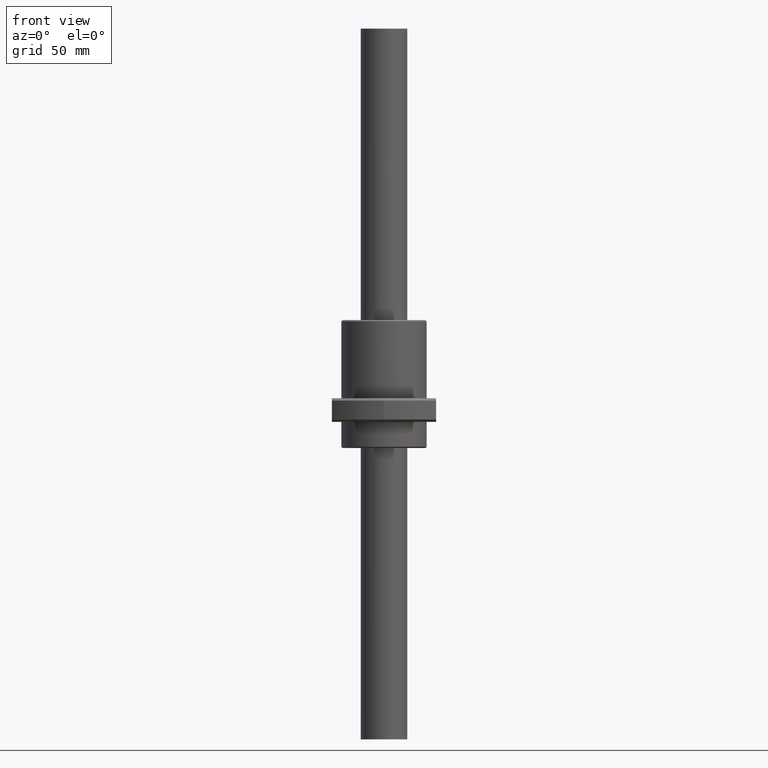
[diagram: clean part render]
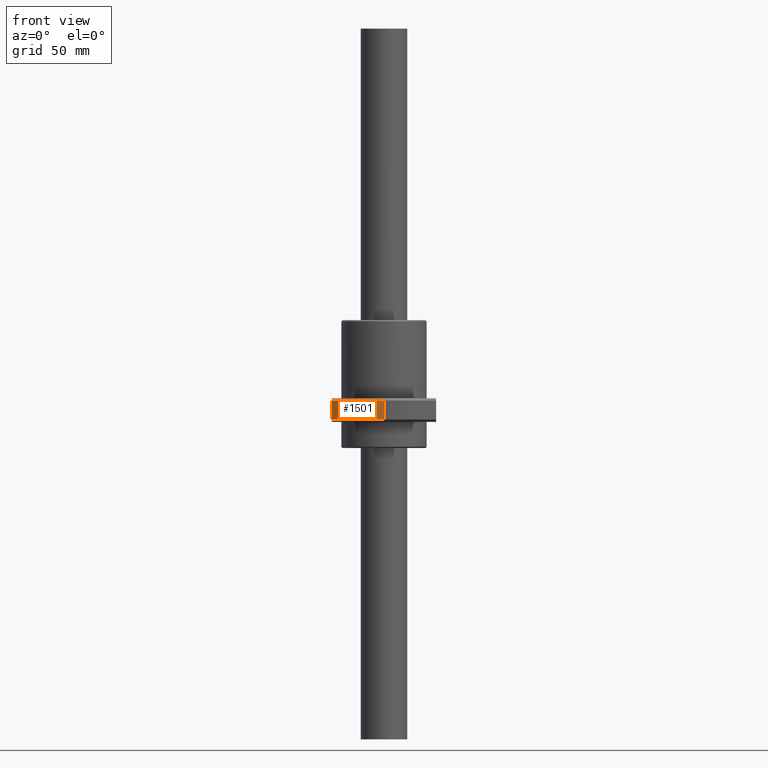
[diagram: same view with one face highlighted and labeled with its STEP entity id]
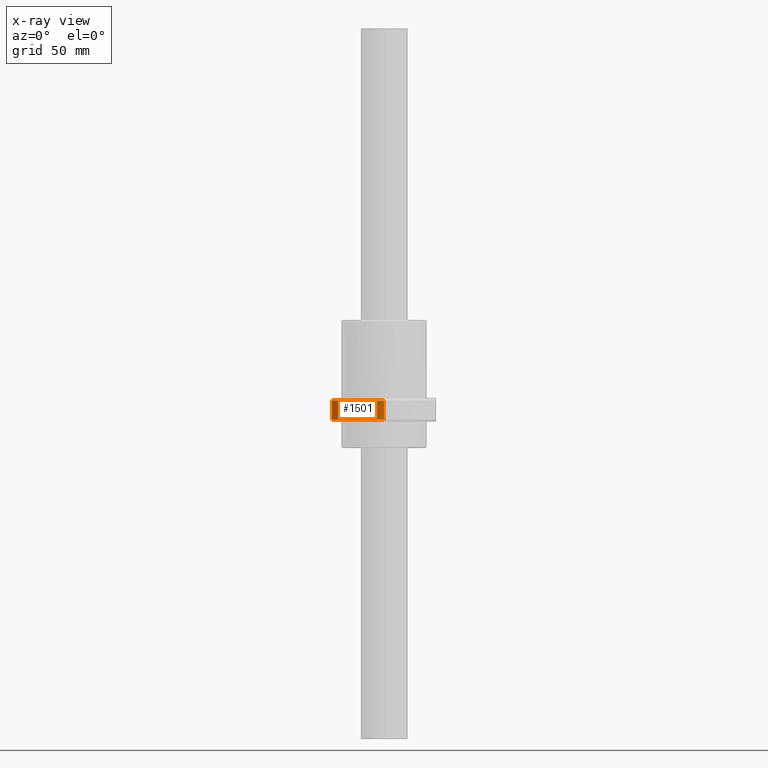
[diagram: x-ray of the same camera — body ghosted, the highlighted face saturated]
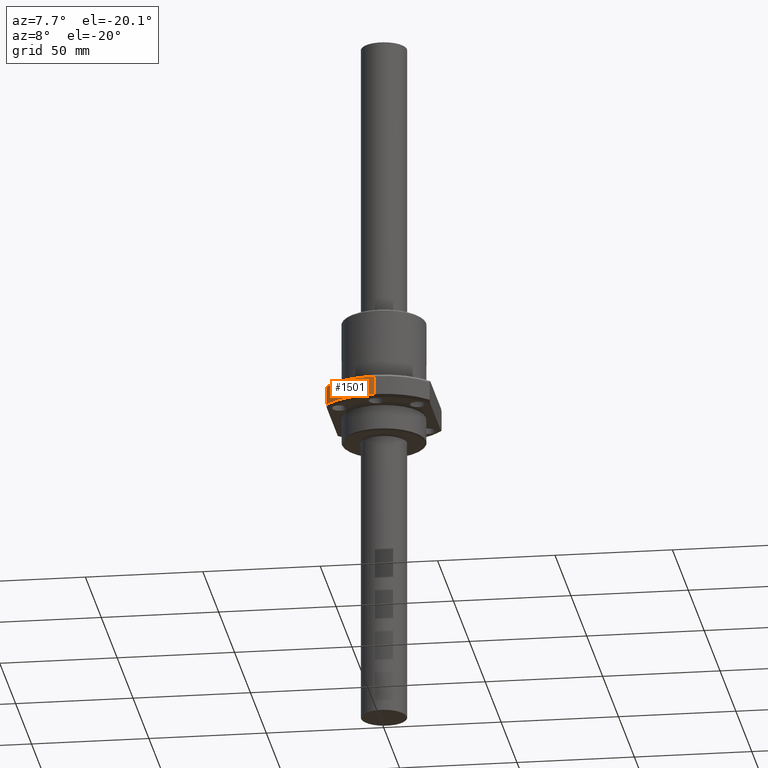
[diagram: same view with one face highlighted and labeled with its STEP entity id]
A machine part, front view. The second image highlights one B-rep face of the part: STEP entity #1501.
The next image is the same camera in x-ray: the body ghosted, the highlighted face saturated — about 0% of this face is hidden behind the body in this view.
A second angle (auxiliary view) of the same face is appended — the face is thin or edge-on in the first view.
In plain terms, the highlighted cylindrical surface (partial cylindrical patch) has radius 29 mm, axis along (0, -0, -1).
Its self-contained STEP definition (entity closure, byte-faithful):
#145 = CARTESIAN_POINT ( 'NONE',  ( 0.0000000000000000000, -29.00000000000000400, -20.00000000000000000 ) ) ;
#174 = CARTESIAN_POINT ( 'NONE',  ( 22.00000000000000000, -18.89444362768589200, -11.99999999989595500 ) ) ;
#181 = EDGE_LOOP ( 'NONE', ( #1565, #1025, #1800, #985 ) ) ;
#189 = EDGE_CURVE ( 'NONE', #1322, #1649, #1421, .T. ) ;
#308 = AXIS2_PLACEMENT_3D ( 'NONE', #1598, #1426, #1228 ) ;
#333 = EDGE_CURVE ( 'NONE', #362, #1649, #1109, .T. ) ;
#362 = VERTEX_POINT ( 'NONE', #174 ) ;
#366 = CYLINDRICAL_SURFACE ( 'NONE', #661, 29.00000000000000000 ) ;
#465 = VECTOR ( 'NONE', #650, 1000.000000000000000 ) ;
#563 = VECTOR ( 'NONE', #1768, 1000.000000000000000 ) ;
#601 = DIRECTION ( 'NONE',  ( 0.0000000000000000000, -1.000000000000000000, -1.196361017915039500E-016 ) ) ;
#650 = DIRECTION ( 'NONE',  ( -0.0000000000000000000, -0.0000000000000000000, -1.000000000000000000 ) ) ;
#661 = AXIS2_PLACEMENT_3D ( 'NONE', #1003, #801, #601 ) ;
#752 = FACE_OUTER_BOUND ( 'NONE', #181, .T. ) ;
#776 = VERTEX_POINT ( 'NONE', #1274 ) ;
#801 = DIRECTION ( 'NONE',  ( 0.0000000000000000000, -5.981805089575197400E-017, 1.000000000000000000 ) ) ;
#854 = CARTESIAN_POINT ( 'NONE',  ( 22.00000000000000000, -18.89444362800000500, -16.00000000000000000 ) ) ;
#889 = AXIS2_PLACEMENT_3D ( 'NONE', #1409, #1587, #1757 ) ;
#985 = ORIENTED_EDGE ( 'NONE', *, *, #333, .T. ) ;
#1003 = CARTESIAN_POINT ( 'NONE',  ( 0.0000000000000000000, 0.0000000000000000000, -20.00000000000000000 ) ) ;
#1025 = ORIENTED_EDGE ( 'NONE', *, *, #1351, .F. ) ;
#1043 = LINE ( 'NONE', #854, #465 ) ;
#1109 = CIRCLE ( 'NONE', #889, 28.99999999999999600 ) ;
#1228 = DIRECTION ( 'NONE',  ( 1.000000000000000000, 0.0000000000000000000, 0.0000000000000000000 ) ) ;
#1274 = CARTESIAN_POINT ( 'NONE',  ( 22.00000000000000000, -18.89444362784559700, -19.99999999989939800 ) ) ;
#1322 = VERTEX_POINT ( 'NONE', #145 ) ;
#1351 = EDGE_CURVE ( 'NONE', #776, #1322, #1812, .T. ) ;
#1409 = CARTESIAN_POINT ( 'NONE',  ( 0.0000000000000000000, 0.0000000000000000000, -12.00000000000001100 ) ) ;
#1421 = LINE ( 'NONE', #1595, #563 ) ;
#1426 = DIRECTION ( 'NONE',  ( -0.0000000000000000000, -0.0000000000000000000, -1.000000000000000000 ) ) ;
#1485 = EDGE_CURVE ( 'NONE', #362, #776, #1043, .T. ) ;
#1501 = ADVANCED_FACE ( 'NONE', ( #752 ), #366, .T. ) ;
#1565 = ORIENTED_EDGE ( 'NONE', *, *, #189, .F. ) ;
#1587 = DIRECTION ( 'NONE',  ( 0.0000000000000000000, 0.0000000000000000000, -1.000000000000000000 ) ) ;
#1595 = CARTESIAN_POINT ( 'NONE',  ( 0.0000000000000000000, -29.00000000000000000, -20.00000000000000400 ) ) ;
#1598 = CARTESIAN_POINT ( 'NONE',  ( 0.0000000000000000000, 0.0000000000000000000, -20.00000000000000000 ) ) ;
#1649 = VERTEX_POINT ( 'NONE', #1804 ) ;
#1757 = DIRECTION ( 'NONE',  ( -1.000000000000000000, 0.0000000000000000000, 3.589083053745118700E-016 ) ) ;
#1768 = DIRECTION ( 'NONE',  ( 0.0000000000000000000, -5.981805089575197400E-017, 1.000000000000000000 ) ) ;
#1800 = ORIENTED_EDGE ( 'NONE', *, *, #1485, .F. ) ;
#1804 = CARTESIAN_POINT ( 'NONE',  ( 0.0000000000000000000, -29.00000000000000400, -12.00000000000001100 ) ) ;
#1812 = CIRCLE ( 'NONE', #308, 28.99999999999999600 ) ;